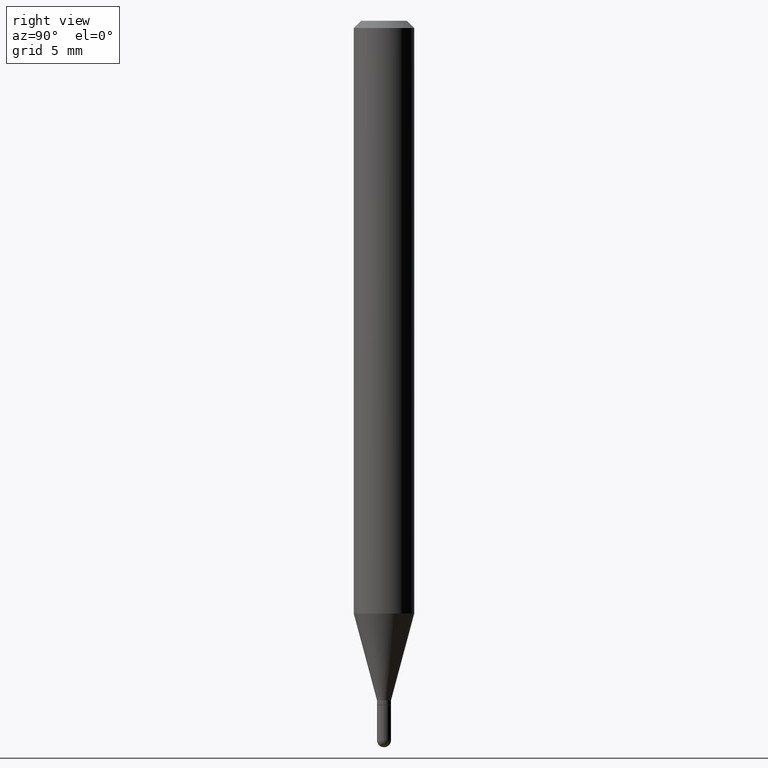
[diagram: clean part render]
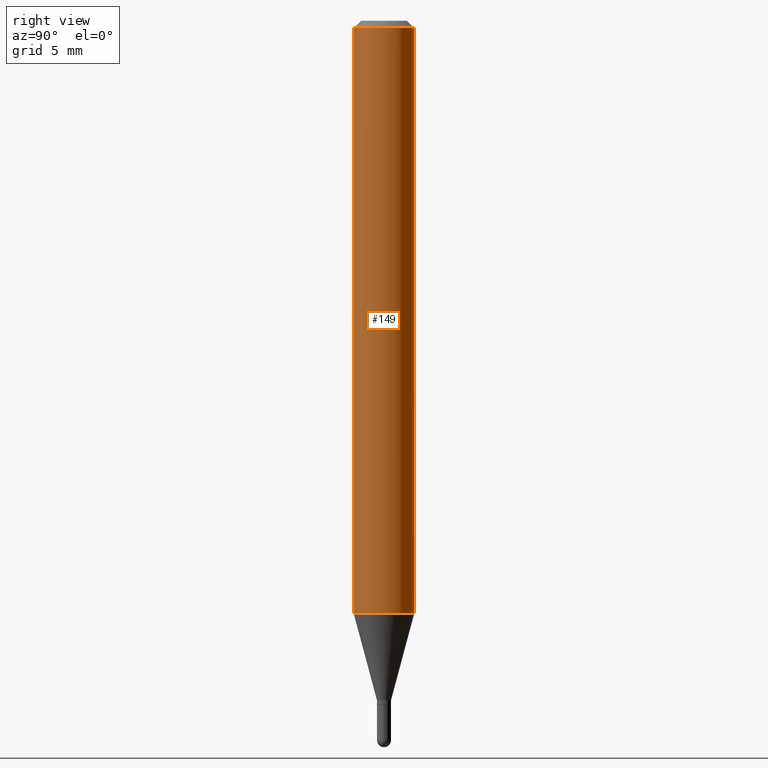
[diagram: same view with one face highlighted and labeled with its STEP entity id]
A machine part, right view. The second image highlights one B-rep face of the part: STEP entity #149.
In plain terms, the highlighted cylindrical surface (edge-blend (fillet) strip) has radius 1.5875 mm, axis along (-0, 0, 1).
Its self-contained STEP definition (entity closure, byte-faithful):
#15 = LINE ( 'NONE', #504, #341 ) ;
#17 = AXIS2_PLACEMENT_3D ( 'NONE', #183, #284, #246 ) ;
#20 = VERTEX_POINT ( 'NONE', #296 ) ;
#23 = ORIENTED_EDGE ( 'NONE', *, *, #510, .F. ) ;
#32 = CARTESIAN_POINT ( 'NONE',  ( 4.440892098500927901E-16, 0.06249999999999995837, -0.01500000000000022669 ) ) ;
#34 = LINE ( 'NONE', #169, #427 ) ;
#35 = CIRCLE ( 'NONE', #109, 0.06250000000000000000 ) ;
#37 = DIRECTION ( 'NONE',  ( -2.445481687363009475E-29, 3.491462892263280603E-15, 1.000000000000000000 ) ) ;
#64 = EDGE_CURVE ( 'NONE', #331, #20, #35, .T. ) ;
#109 = AXIS2_PLACEMENT_3D ( 'NONE', #255, #297, #337 ) ;
#124 = ORIENTED_EDGE ( 'NONE', *, *, #428, .T. ) ;
#134 = VERTEX_POINT ( 'NONE', #32 ) ;
#147 = CYLINDRICAL_SURFACE ( 'NONE', #17, 0.06250000000000000000 ) ;
#149 = ADVANCED_FACE ( 'NONE', ( #480 ), #147, .T. ) ;
#169 = CARTESIAN_POINT ( 'NONE',  ( -4.364351673553916201E-16, -0.06250000000000000000, 2.182164307664550130E-16 ) ) ;
#171 = ORIENTED_EDGE ( 'NONE', *, *, #64, .T. ) ;
#183 = CARTESIAN_POINT ( 'NONE',  ( 0.000000000000000000, 0.000000000000000000, 0.000000000000000000 ) ) ;
#229 = CIRCLE ( 'NONE', #348, 0.06250000000000000000 ) ;
#246 = DIRECTION ( 'NONE',  ( -6.982962677686265922E-15, -1.000000000000000000, 3.491462892263280208E-15 ) ) ;
#249 = EDGE_CURVE ( 'NONE', #331, #415, #34, .T. ) ;
#255 = CARTESIAN_POINT ( 'NONE',  ( 2.992931035871838539E-29, -4.273067226325322943E-15, -1.223861561236694540 ) ) ;
#284 = DIRECTION ( 'NONE',  ( -2.445481687363009475E-29, 3.491462892263280603E-15, 1.000000000000000000 ) ) ;
#296 = CARTESIAN_POINT ( 'NONE',  ( 4.440892098500922971E-16, 0.06249999999999571176, -1.223861561236694762 ) ) ;
#297 = DIRECTION ( 'NONE',  ( -2.445481687363009475E-29, 3.491462892263280603E-15, 1.000000000000000000 ) ) ;
#331 = VERTEX_POINT ( 'NONE', #343 ) ;
#337 = DIRECTION ( 'NONE',  ( -6.982962677686265922E-15, -1.000000000000000000, 4.370956789862821150E-15 ) ) ;
#341 = VECTOR ( 'NONE', #384, 39.37007874015748143 ) ;
#343 = CARTESIAN_POINT ( 'NONE',  ( -4.364351673553617913E-16, -0.06250000000000427436, -1.223861561236694095 ) ) ;
#348 = AXIS2_PLACEMENT_3D ( 'NONE', #470, #37, #399 ) ;
#384 = DIRECTION ( 'NONE',  ( -2.445481687363009755E-29, 3.491462892263280997E-15, 1.000000000000000000 ) ) ;
#399 = DIRECTION ( 'NONE',  ( -6.982962677686265922E-15, -1.000000000000000000, 3.483106191921935554E-15 ) ) ;
#415 = VERTEX_POINT ( 'NONE', #423 ) ;
#423 = CARTESIAN_POINT ( 'NONE',  ( -4.364351673553912750E-16, -0.06250000000000005551, -0.01499999999999979128 ) ) ;
#427 = VECTOR ( 'NONE', #446, 39.37007874015748143 ) ;
#428 = EDGE_CURVE ( 'NONE', #20, #134, #15, .T. ) ;
#446 = DIRECTION ( 'NONE',  ( -2.445481687363009755E-29, 3.491462892263280997E-15, 1.000000000000000000 ) ) ;
#460 = EDGE_LOOP ( 'NONE', ( #171, #124, #23, #473 ) ) ;
#470 = CARTESIAN_POINT ( 'NONE',  ( 3.668222531044516962E-31, -5.237194338394923985E-17, -0.01500000000000000812 ) ) ;
#473 = ORIENTED_EDGE ( 'NONE', *, *, #249, .F. ) ;
#480 = FACE_OUTER_BOUND ( 'NONE', #460, .T. ) ;
#504 = CARTESIAN_POINT ( 'NONE',  ( 4.440892098500625669E-16, 0.06250000000000000000, -2.182164307664550130E-16 ) ) ;
#510 = EDGE_CURVE ( 'NONE', #415, #134, #229, .T. ) ;